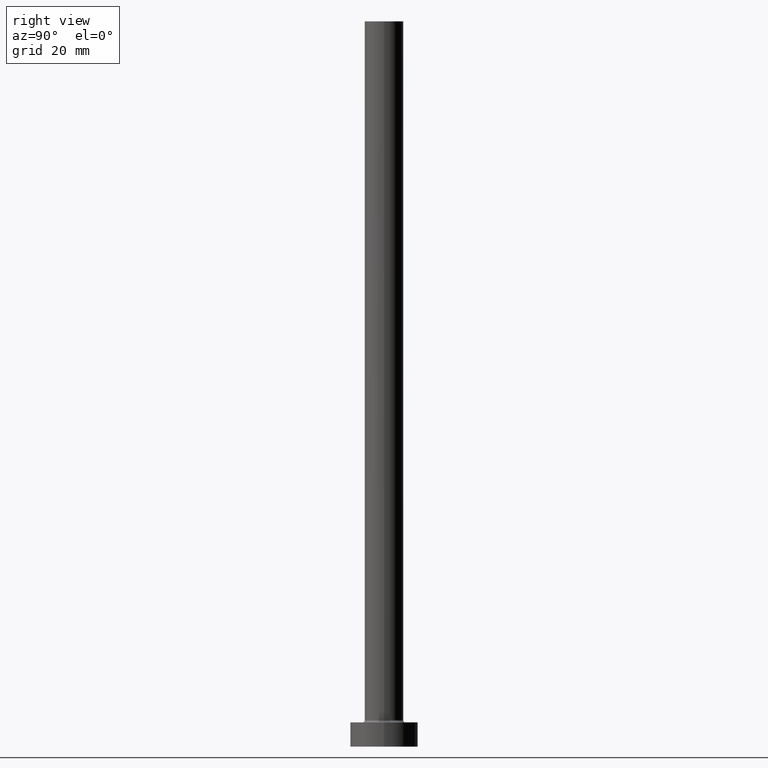
[diagram: clean part render]
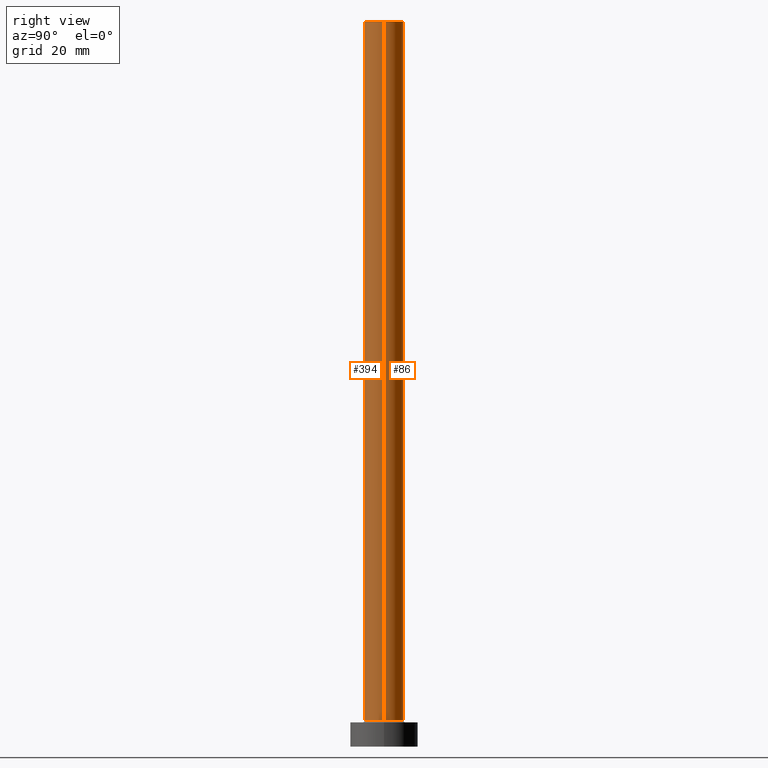
[diagram: same view with one multi-face feature highlighted, each face labeled with its STEP entity id]
A machine part, right view. The highlighted faces form ONE feature: a constant-radius fillet chain: 2 tangent blend faces with common blend radius 4 mm. The faces share edges in the B-rep.
Their STEP definitions:
[1] entity #86 (Cylinder):
#7 = DIRECTION ( 'NONE',  ( -0.000000000000000000, -0.000000000000000000, -1.000000000000000000 ) ) ;
#16 = EDGE_CURVE ( 'NONE', #363, #251, #229, .T. ) ;
#19 = LINE ( 'NONE', #110, #172 ) ;
#39 = CARTESIAN_POINT ( 'NONE',  ( 4.000000000000000000, 4.898587196589412829E-16, 150.0000000000000000 ) ) ;
#43 = CARTESIAN_POINT ( 'NONE',  ( 4.000000000000000000, 4.898587196589412829E-16, 5.500000000000005329 ) ) ;
#57 = AXIS2_PLACEMENT_3D ( 'NONE', #308, #347, #157 ) ;
#85 = VECTOR ( 'NONE', #7, 1000.000000000000000 ) ;
#86 = ADVANCED_FACE ( 'NONE', ( #304 ), #407, .T. ) ;
#91 = CARTESIAN_POINT ( 'NONE',  ( -4.000000000000000000, 0.000000000000000000, 150.0000000000000000 ) ) ;
#110 = CARTESIAN_POINT ( 'NONE',  ( -4.000000000000000000, 0.000000000000000000, 150.0000000000000000 ) ) ;
#127 = EDGE_CURVE ( 'NONE', #251, #265, #19, .T. ) ;
#139 = VERTEX_POINT ( 'NONE', #43 ) ;
#157 = DIRECTION ( 'NONE',  ( 1.000000000000000000, 0.000000000000000000, 0.000000000000000000 ) ) ;
#172 = VECTOR ( 'NONE', #307, 1000.000000000000000 ) ;
#173 = DIRECTION ( 'NONE',  ( 0.000000000000000000, 0.000000000000000000, 1.000000000000000000 ) ) ;
#194 = DIRECTION ( 'NONE',  ( -1.000000000000000000, 0.000000000000000000, 0.000000000000000000 ) ) ;
#195 = CIRCLE ( 'NONE', #460, 4.000000000000000000 ) ;
#213 = ORIENTED_EDGE ( 'NONE', *, *, #16, .F. ) ;
#229 = CIRCLE ( 'NONE', #57, 4.000000000000000000 ) ;
#250 = DIRECTION ( 'NONE',  ( 1.000000000000000000, 0.000000000000000000, 0.000000000000000000 ) ) ;
#251 = VERTEX_POINT ( 'NONE', #91 ) ;
#252 = CARTESIAN_POINT ( 'NONE',  ( 4.000000000000000000, 4.898587196589412829E-16, 150.0000000000000000 ) ) ;
#253 = AXIS2_PLACEMENT_3D ( 'NONE', #415, #331, #194 ) ;
#265 = VERTEX_POINT ( 'NONE', #317 ) ;
#304 = FACE_OUTER_BOUND ( 'NONE', #354, .T. ) ;
#307 = DIRECTION ( 'NONE',  ( -0.000000000000000000, -0.000000000000000000, -1.000000000000000000 ) ) ;
#308 = CARTESIAN_POINT ( 'NONE',  ( 0.000000000000000000, 0.000000000000000000, 150.0000000000000000 ) ) ;
#317 = CARTESIAN_POINT ( 'NONE',  ( -4.000000000000000000, 0.000000000000000000, 5.500000000000005329 ) ) ;
#331 = DIRECTION ( 'NONE',  ( -0.000000000000000000, -0.000000000000000000, -1.000000000000000000 ) ) ;
#347 = DIRECTION ( 'NONE',  ( 0.000000000000000000, 0.000000000000000000, 1.000000000000000000 ) ) ;
#353 = EDGE_CURVE ( 'NONE', #139, #265, #195, .T. ) ;
#354 = EDGE_LOOP ( 'NONE', ( #213, #359, #368, #432 ) ) ;
#359 = ORIENTED_EDGE ( 'NONE', *, *, #367, .T. ) ;
#363 = VERTEX_POINT ( 'NONE', #39 ) ;
#367 = EDGE_CURVE ( 'NONE', #363, #139, #402, .T. ) ;
#368 = ORIENTED_EDGE ( 'NONE', *, *, #353, .T. ) ;
#400 = CARTESIAN_POINT ( 'NONE',  ( 0.000000000000000000, 0.000000000000000000, 5.500000000000005329 ) ) ;
#402 = LINE ( 'NONE', #252, #85 ) ;
#407 = CYLINDRICAL_SURFACE ( 'NONE', #253, 4.000000000000000000 ) ;
#415 = CARTESIAN_POINT ( 'NONE',  ( 0.000000000000000000, 0.000000000000000000, 150.0000000000000000 ) ) ;
#432 = ORIENTED_EDGE ( 'NONE', *, *, #127, .F. ) ;
#460 = AXIS2_PLACEMENT_3D ( 'NONE', #400, #173, #250 ) ;
[2] entity #394 (Cylinder):
#7 = DIRECTION ( 'NONE',  ( -0.000000000000000000, -0.000000000000000000, -1.000000000000000000 ) ) ;
#17 = CARTESIAN_POINT ( 'NONE',  ( 0.000000000000000000, 0.000000000000000000, 150.0000000000000000 ) ) ;
#19 = LINE ( 'NONE', #110, #172 ) ;
#39 = CARTESIAN_POINT ( 'NONE',  ( 4.000000000000000000, 4.898587196589412829E-16, 150.0000000000000000 ) ) ;
#43 = CARTESIAN_POINT ( 'NONE',  ( 4.000000000000000000, 4.898587196589412829E-16, 5.500000000000005329 ) ) ;
#78 = ORIENTED_EDGE ( 'NONE', *, *, #409, .F. ) ;
#85 = VECTOR ( 'NONE', #7, 1000.000000000000000 ) ;
#91 = CARTESIAN_POINT ( 'NONE',  ( -4.000000000000000000, 0.000000000000000000, 150.0000000000000000 ) ) ;
#110 = CARTESIAN_POINT ( 'NONE',  ( -4.000000000000000000, 0.000000000000000000, 150.0000000000000000 ) ) ;
#127 = EDGE_CURVE ( 'NONE', #251, #265, #19, .T. ) ;
#139 = VERTEX_POINT ( 'NONE', #43 ) ;
#147 = CARTESIAN_POINT ( 'NONE',  ( 0.000000000000000000, 0.000000000000000000, 150.0000000000000000 ) ) ;
#153 = FACE_OUTER_BOUND ( 'NONE', #207, .T. ) ;
#168 = EDGE_CURVE ( 'NONE', #265, #139, #314, .T. ) ;
#172 = VECTOR ( 'NONE', #307, 1000.000000000000000 ) ;
#207 = EDGE_LOOP ( 'NONE', ( #255, #78, #345, #288 ) ) ;
#246 = AXIS2_PLACEMENT_3D ( 'NONE', #147, #380, #406 ) ;
#251 = VERTEX_POINT ( 'NONE', #91 ) ;
#252 = CARTESIAN_POINT ( 'NONE',  ( 4.000000000000000000, 4.898587196589412829E-16, 150.0000000000000000 ) ) ;
#255 = ORIENTED_EDGE ( 'NONE', *, *, #367, .F. ) ;
#263 = AXIS2_PLACEMENT_3D ( 'NONE', #418, #382, #385 ) ;
#265 = VERTEX_POINT ( 'NONE', #317 ) ;
#288 = ORIENTED_EDGE ( 'NONE', *, *, #168, .T. ) ;
#295 = DIRECTION ( 'NONE',  ( 1.000000000000000000, 0.000000000000000000, 0.000000000000000000 ) ) ;
#302 = CYLINDRICAL_SURFACE ( 'NONE', #246, 4.000000000000000000 ) ;
#307 = DIRECTION ( 'NONE',  ( -0.000000000000000000, -0.000000000000000000, -1.000000000000000000 ) ) ;
#314 = CIRCLE ( 'NONE', #263, 4.000000000000000000 ) ;
#317 = CARTESIAN_POINT ( 'NONE',  ( -4.000000000000000000, 0.000000000000000000, 5.500000000000005329 ) ) ;
#328 = AXIS2_PLACEMENT_3D ( 'NONE', #17, #337, #295 ) ;
#337 = DIRECTION ( 'NONE',  ( 0.000000000000000000, 0.000000000000000000, 1.000000000000000000 ) ) ;
#345 = ORIENTED_EDGE ( 'NONE', *, *, #127, .T. ) ;
#356 = CIRCLE ( 'NONE', #328, 4.000000000000000000 ) ;
#363 = VERTEX_POINT ( 'NONE', #39 ) ;
#367 = EDGE_CURVE ( 'NONE', #363, #139, #402, .T. ) ;
#380 = DIRECTION ( 'NONE',  ( -0.000000000000000000, -0.000000000000000000, -1.000000000000000000 ) ) ;
#382 = DIRECTION ( 'NONE',  ( 0.000000000000000000, 0.000000000000000000, 1.000000000000000000 ) ) ;
#385 = DIRECTION ( 'NONE',  ( 1.000000000000000000, 0.000000000000000000, 0.000000000000000000 ) ) ;
#394 = ADVANCED_FACE ( 'NONE', ( #153 ), #302, .T. ) ;
#402 = LINE ( 'NONE', #252, #85 ) ;
#406 = DIRECTION ( 'NONE',  ( -1.000000000000000000, 0.000000000000000000, 0.000000000000000000 ) ) ;
#409 = EDGE_CURVE ( 'NONE', #251, #363, #356, .T. ) ;
#418 = CARTESIAN_POINT ( 'NONE',  ( 0.000000000000000000, 0.000000000000000000, 5.500000000000005329 ) ) ;